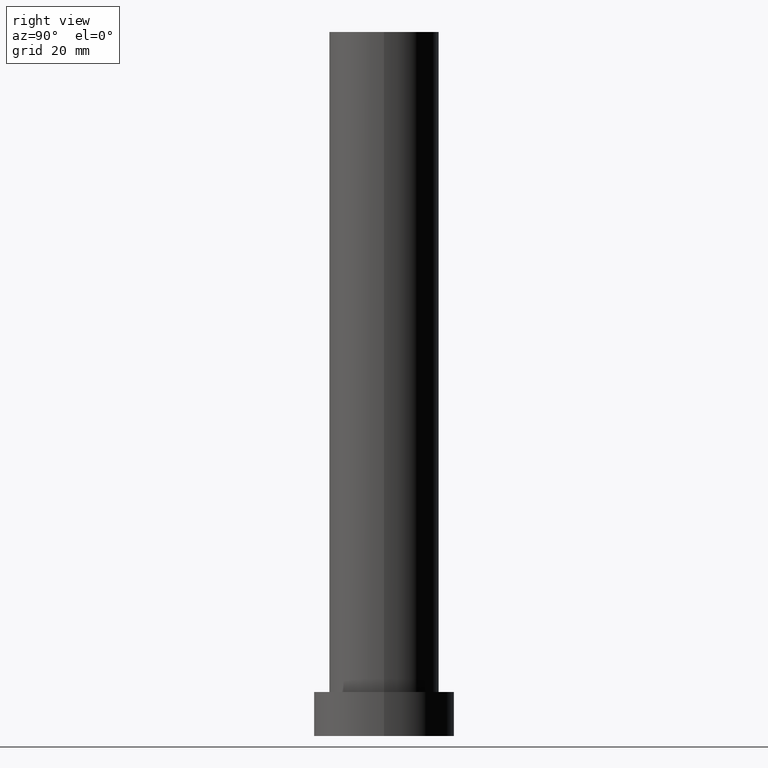
[diagram: clean part render]
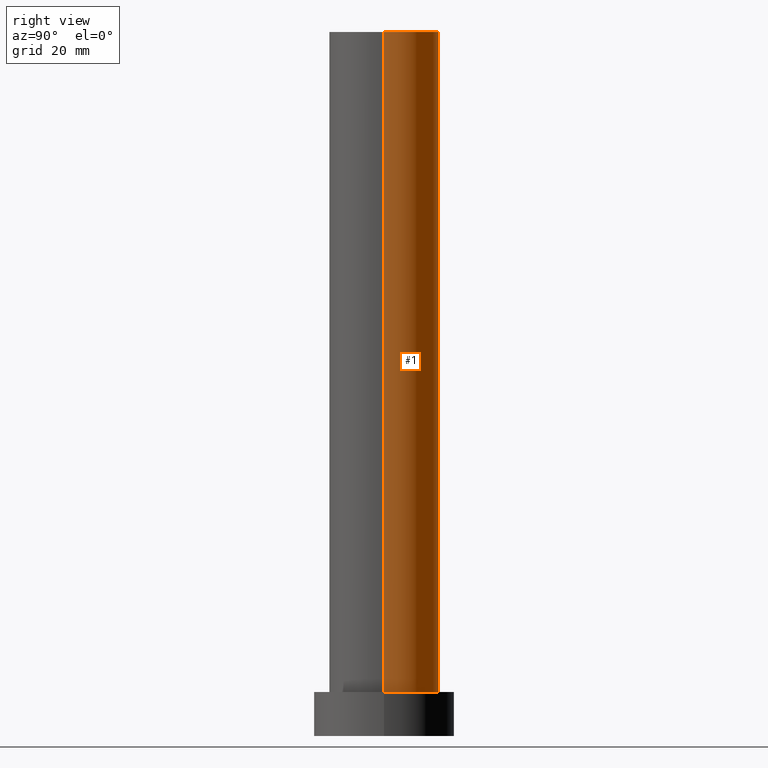
[diagram: same view with one face highlighted and labeled with its STEP entity id]
A machine part, right view. The second image highlights one B-rep face of the part: STEP entity #1.
In plain terms, the highlighted cylindrical surface (partial cylindrical patch) has radius 12.5 mm, axis along (-0, -0, -1).
Its self-contained STEP definition (entity closure, byte-faithful):
#1 = ADVANCED_FACE ( 'NONE', ( #175 ), #219, .T. ) ;
#8 = CARTESIAN_POINT ( 'NONE',  ( -12.50000000000000000, 0.000000000000000000, 10.00000000000000000 ) ) ;
#22 = LINE ( 'NONE', #64, #187 ) ;
#38 = ORIENTED_EDGE ( 'NONE', *, *, #109, .T. ) ;
#39 = DIRECTION ( 'NONE',  ( 1.000000000000000000, 0.000000000000000000, 0.000000000000000000 ) ) ;
#41 = ORIENTED_EDGE ( 'NONE', *, *, #207, .F. ) ;
#56 = DIRECTION ( 'NONE',  ( 1.000000000000000000, 0.000000000000000000, 0.000000000000000000 ) ) ;
#57 = VERTEX_POINT ( 'NONE', #110 ) ;
#59 = DIRECTION ( 'NONE',  ( 0.000000000000000000, 0.000000000000000000, 1.000000000000000000 ) ) ;
#64 = CARTESIAN_POINT ( 'NONE',  ( 12.50000000000000000, 1.530808498934191521E-15, 160.0000000000000000 ) ) ;
#65 = EDGE_LOOP ( 'NONE', ( #41, #251, #38, #184 ) ) ;
#68 = CARTESIAN_POINT ( 'NONE',  ( 0.000000000000000000, 0.000000000000000000, 160.0000000000000000 ) ) ;
#75 = LINE ( 'NONE', #180, #135 ) ;
#81 = VERTEX_POINT ( 'NONE', #8 ) ;
#92 = AXIS2_PLACEMENT_3D ( 'NONE', #68, #200, #130 ) ;
#96 = CARTESIAN_POINT ( 'NONE',  ( 0.000000000000000000, 0.000000000000000000, 160.0000000000000000 ) ) ;
#97 = EDGE_CURVE ( 'NONE', #214, #81, #75, .T. ) ;
#109 = EDGE_CURVE ( 'NONE', #57, #81, #211, .T. ) ;
#110 = CARTESIAN_POINT ( 'NONE',  ( 12.50000000000000000, 1.530808498934191521E-15, 10.00000000000000000 ) ) ;
#116 = DIRECTION ( 'NONE',  ( -0.000000000000000000, -0.000000000000000000, -1.000000000000000000 ) ) ;
#119 = CARTESIAN_POINT ( 'NONE',  ( -12.50000000000000000, 0.000000000000000000, 160.0000000000000000 ) ) ;
#122 = VERTEX_POINT ( 'NONE', #129 ) ;
#129 = CARTESIAN_POINT ( 'NONE',  ( 12.50000000000000000, 1.530808498934191521E-15, 160.0000000000000000 ) ) ;
#130 = DIRECTION ( 'NONE',  ( -1.000000000000000000, 0.000000000000000000, 0.000000000000000000 ) ) ;
#135 = VECTOR ( 'NONE', #160, 1000.000000000000000 ) ;
#140 = AXIS2_PLACEMENT_3D ( 'NONE', #232, #59, #56 ) ;
#160 = DIRECTION ( 'NONE',  ( -0.000000000000000000, -0.000000000000000000, -1.000000000000000000 ) ) ;
#175 = FACE_OUTER_BOUND ( 'NONE', #65, .T. ) ;
#180 = CARTESIAN_POINT ( 'NONE',  ( -12.50000000000000000, 0.000000000000000000, 160.0000000000000000 ) ) ;
#182 = CIRCLE ( 'NONE', #204, 12.50000000000000000 ) ;
#184 = ORIENTED_EDGE ( 'NONE', *, *, #97, .F. ) ;
#185 = EDGE_CURVE ( 'NONE', #122, #57, #22, .T. ) ;
#187 = VECTOR ( 'NONE', #116, 1000.000000000000000 ) ;
#200 = DIRECTION ( 'NONE',  ( -0.000000000000000000, -0.000000000000000000, -1.000000000000000000 ) ) ;
#204 = AXIS2_PLACEMENT_3D ( 'NONE', #96, #231, #39 ) ;
#207 = EDGE_CURVE ( 'NONE', #122, #214, #182, .T. ) ;
#211 = CIRCLE ( 'NONE', #140, 12.50000000000000000 ) ;
#214 = VERTEX_POINT ( 'NONE', #119 ) ;
#219 = CYLINDRICAL_SURFACE ( 'NONE', #92, 12.50000000000000000 ) ;
#231 = DIRECTION ( 'NONE',  ( 0.000000000000000000, 0.000000000000000000, 1.000000000000000000 ) ) ;
#232 = CARTESIAN_POINT ( 'NONE',  ( 0.000000000000000000, 0.000000000000000000, 10.00000000000000000 ) ) ;
#251 = ORIENTED_EDGE ( 'NONE', *, *, #185, .T. ) ;